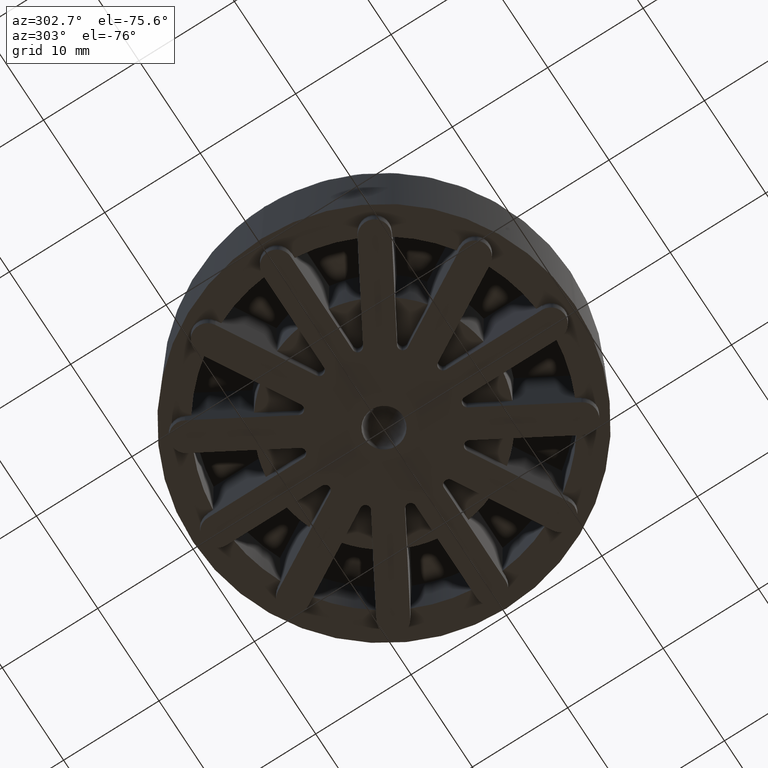
[diagram: clean part render]
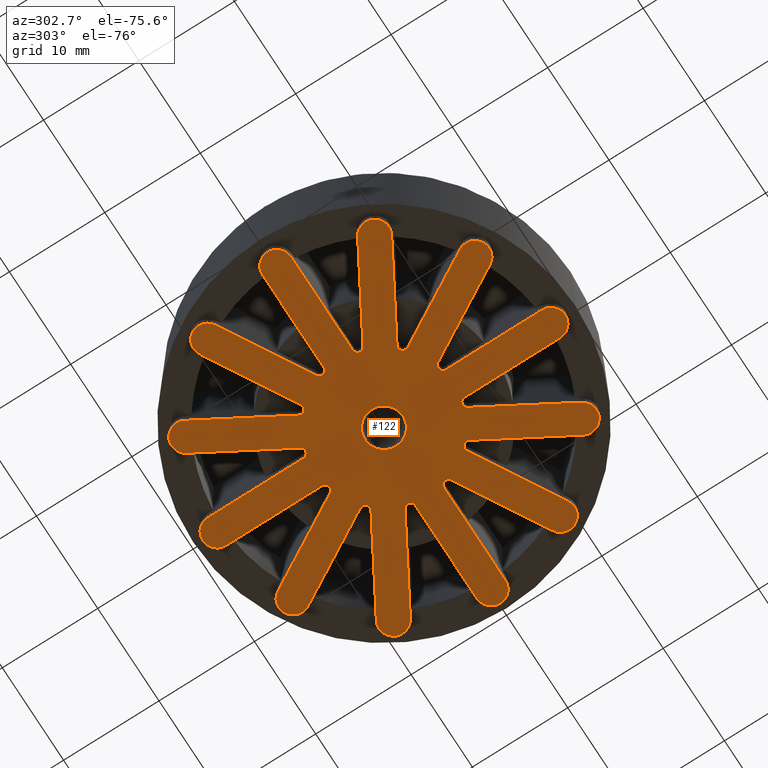
[diagram: same view with one face highlighted and labeled with its STEP entity id]
A machine part, auxiliary view. The second image highlights one B-rep face of the part: STEP entity #122.
In plain terms, the highlighted planar face has unit normal (0, 0, -1).
Its self-contained STEP definition (entity closure, byte-faithful):
#122=ADVANCED_FACE('',(#1024,#1025),#1023,.T.);
#1023=PLANE('',#2232);
#1024=FACE_OUTER_BOUND('',#2233,.T.);
#1025=FACE_BOUND('',#2234,.T.);
#2229=CARTESIAN_POINT('',(2.28000000000E+01,-2.28000000000E+01,0.00000000000E+00));
#2230=DIRECTION('',(0.00000000000E+00,0.00000000000E+00,-1.00000000000E+00));
#2231=DIRECTION('',(-1.00000000000E+00,0.00000000000E+00,0.00000000000E+00));
#2232=AXIS2_PLACEMENT_3D('',#2229,#2230,#2231);
#2233=EDGE_LOOP('',(#3075,#3076,#3077,#3078,#3079,#3080,#3081,#3082,#3083,#3084,#3085,#3086,#3087,#3088,#3089,#3090,#3091,#3092,#3093,#3094,#3095,#3096,#3097,#3098,#3099,#3100,#3101,#3102,#3103,#3104,#3105,#3106,#3107,#3108,#3109,#3110,#3111,#3112,#3113,#3114,#3115,#3116,#3117,#3118,#3119,#3120,#3121,#3122));
#2234=EDGE_LOOP('',(#3123,#3124));
#3075=ORIENTED_EDGE('',*,*,#3839,.F.);
#3076=ORIENTED_EDGE('',*,*,#3840,.F.);
#3077=ORIENTED_EDGE('',*,*,#3791,.T.);
#3078=ORIENTED_EDGE('',*,*,#3841,.F.);
#3079=ORIENTED_EDGE('',*,*,#3793,.F.);
#3080=ORIENTED_EDGE('',*,*,#3603,.F.);
#3081=ORIENTED_EDGE('',*,*,#3795,.T.);
#3082=ORIENTED_EDGE('',*,*,#3842,.F.);
#3083=ORIENTED_EDGE('',*,*,#3797,.F.);
#3084=ORIENTED_EDGE('',*,*,#3611,.F.);
#3085=ORIENTED_EDGE('',*,*,#3799,.T.);
#3086=ORIENTED_EDGE('',*,*,#3623,.F.);
#3087=ORIENTED_EDGE('',*,*,#3801,.F.);
#3088=ORIENTED_EDGE('',*,*,#3843,.F.);
#3089=ORIENTED_EDGE('',*,*,#3803,.T.);
#3090=ORIENTED_EDGE('',*,*,#3760,.F.);
#3091=ORIENTED_EDGE('',*,*,#3805,.F.);
#3092=ORIENTED_EDGE('',*,*,#3763,.F.);
#3093=ORIENTED_EDGE('',*,*,#3807,.T.);
#3094=ORIENTED_EDGE('',*,*,#3844,.F.);
#3095=ORIENTED_EDGE('',*,*,#3809,.F.);
#3096=ORIENTED_EDGE('',*,*,#3769,.F.);
#3097=ORIENTED_EDGE('',*,*,#3811,.T.);
#3098=ORIENTED_EDGE('',*,*,#3778,.F.);
#3099=ORIENTED_EDGE('',*,*,#3813,.F.);
#3100=ORIENTED_EDGE('',*,*,#3845,.F.);
#3101=ORIENTED_EDGE('',*,*,#3815,.T.);
#3102=ORIENTED_EDGE('',*,*,#3846,.F.);
#3103=ORIENTED_EDGE('',*,*,#3817,.F.);
#3104=ORIENTED_EDGE('',*,*,#3847,.F.);
#3105=ORIENTED_EDGE('',*,*,#3819,.T.);
#3106=ORIENTED_EDGE('',*,*,#3848,.F.);
#3107=ORIENTED_EDGE('',*,*,#3821,.F.);
#3108=ORIENTED_EDGE('',*,*,#3849,.F.);
#3109=ORIENTED_EDGE('',*,*,#3823,.T.);
#3110=ORIENTED_EDGE('',*,*,#3850,.F.);
#3111=ORIENTED_EDGE('',*,*,#3825,.F.);
#3112=ORIENTED_EDGE('',*,*,#3851,.F.);
#3113=ORIENTED_EDGE('',*,*,#3827,.T.);
#3114=ORIENTED_EDGE('',*,*,#3852,.F.);
#3115=ORIENTED_EDGE('',*,*,#3829,.F.);
#3116=ORIENTED_EDGE('',*,*,#3853,.F.);
#3117=ORIENTED_EDGE('',*,*,#3831,.T.);
#3118=ORIENTED_EDGE('',*,*,#3854,.F.);
#3119=ORIENTED_EDGE('',*,*,#3834,.F.);
#3120=ORIENTED_EDGE('',*,*,#3591,.F.);
#3121=ORIENTED_EDGE('',*,*,#3837,.T.);
#3122=ORIENTED_EDGE('',*,*,#3855,.F.);
#3123=ORIENTED_EDGE('',*,*,#3856,.F.);
#3124=ORIENTED_EDGE('',*,*,#3857,.F.);
#3591=EDGE_CURVE('',#4017,#4024,#4025,.T.);
#3603=EDGE_CURVE('',#4101,#4108,#4109,.T.);
#3611=EDGE_CURVE('',#4157,#4164,#4165,.T.);
#3623=EDGE_CURVE('',#4241,#4199,#4248,.T.);
#3760=EDGE_CURVE('',#4857,#4899,#5199,.T.);
#3763=EDGE_CURVE('',#4794,#4836,#5219,.T.);
#3769=EDGE_CURVE('',#4710,#4752,#5259,.T.);
#3778=EDGE_CURVE('',#4689,#4731,#5319,.T.);
#3791=EDGE_CURVE('',#5103,#5124,#5405,.T.);
#3793=EDGE_CURVE('',#4108,#5061,#5417,.T.);
#3795=EDGE_CURVE('',#4101,#5027,#5429,.T.);
#3797=EDGE_CURVE('',#4164,#4993,#5441,.T.);
#3799=EDGE_CURVE('',#4157,#4199,#5453,.T.);
#3801=EDGE_CURVE('',#4920,#4241,#5465,.T.);
#3803=EDGE_CURVE('',#4878,#4899,#5477,.T.);
#3805=EDGE_CURVE('',#4836,#4857,#5489,.T.);
#3807=EDGE_CURVE('',#4794,#4815,#5501,.T.);
#3809=EDGE_CURVE('',#4752,#4773,#5513,.T.);
#3811=EDGE_CURVE('',#4710,#4731,#5525,.T.);
#3813=EDGE_CURVE('',#4668,#4689,#5537,.T.);
#3815=EDGE_CURVE('',#4626,#4647,#5549,.T.);
#3817=EDGE_CURVE('',#4584,#4605,#5561,.T.);
#3819=EDGE_CURVE('',#4542,#4563,#5573,.T.);
#3821=EDGE_CURVE('',#4500,#4521,#5585,.T.);
#3823=EDGE_CURVE('',#4458,#4479,#5597,.T.);
#3825=EDGE_CURVE('',#4416,#4437,#5609,.T.);
#3827=EDGE_CURVE('',#4374,#4395,#5621,.T.);
#3829=EDGE_CURVE('',#4332,#4353,#5633,.T.);
#3831=EDGE_CURVE('',#4290,#4311,#5645,.T.);
#3834=EDGE_CURVE('',#4024,#4269,#5664,.T.);
#3837=EDGE_CURVE('',#4017,#5678,#5685,.T.);
#3839=EDGE_CURVE('',#5082,#5145,#5697,.T.);
#3840=EDGE_CURVE('',#5103,#5082,#5703,.T.);
#3841=EDGE_CURVE('',#5061,#5124,#5709,.T.);
#3842=EDGE_CURVE('',#4993,#5027,#5715,.T.);
#3843=EDGE_CURVE('',#4878,#4920,#5721,.T.);
#3844=EDGE_CURVE('',#4773,#4815,#5727,.T.);
#3845=EDGE_CURVE('',#4626,#4668,#5733,.T.);
#3846=EDGE_CURVE('',#4605,#4647,#5739,.T.);
#3847=EDGE_CURVE('',#4542,#4584,#5745,.T.);
#3848=EDGE_CURVE('',#4521,#4563,#5751,.T.);
#3849=EDGE_CURVE('',#4458,#4500,#5757,.T.);
#3850=EDGE_CURVE('',#4437,#4479,#5763,.T.);
#3851=EDGE_CURVE('',#4374,#4416,#5769,.T.);
#3852=EDGE_CURVE('',#4353,#4395,#5775,.T.);
#3853=EDGE_CURVE('',#4290,#4332,#5781,.T.);
#3854=EDGE_CURVE('',#4269,#4311,#5787,.T.);
#3855=EDGE_CURVE('',#5145,#5678,#5793,.T.);
#3856=EDGE_CURVE('',#5799,#5800,#5801,.T.);
#3857=EDGE_CURVE('',#5800,#5799,#5807,.T.);
#4017=VERTEX_POINT('',#6758);
#4024=VERTEX_POINT('',#6762);
#4025=LINE('',#6763,#6764);
#4101=VERTEX_POINT('',#6815);
#4108=VERTEX_POINT('',#6819);
#4109=LINE('',#6820,#6821);
#4157=VERTEX_POINT('',#6852);
#4164=VERTEX_POINT('',#6856);
#4165=LINE('',#6857,#6858);
#4199=VERTEX_POINT('',#6877);
#4241=VERTEX_POINT('',#6903);
#4248=LINE('',#6907,#6908);
#4269=VERTEX_POINT('',#6921);
#4290=VERTEX_POINT('',#6933);
#4311=VERTEX_POINT('',#6945);
#4332=VERTEX_POINT('',#6957);
#4353=VERTEX_POINT('',#6969);
#4374=VERTEX_POINT('',#6981);
#4395=VERTEX_POINT('',#6993);
#4416=VERTEX_POINT('',#7005);
#4437=VERTEX_POINT('',#7017);
#4458=VERTEX_POINT('',#7029);
#4479=VERTEX_POINT('',#7041);
#4500=VERTEX_POINT('',#7053);
#4521=VERTEX_POINT('',#7065);
#4542=VERTEX_POINT('',#7077);
#4563=VERTEX_POINT('',#7089);
#4584=VERTEX_POINT('',#7101);
#4605=VERTEX_POINT('',#7113);
#4626=VERTEX_POINT('',#7125);
#4647=VERTEX_POINT('',#7137);
#4668=VERTEX_POINT('',#7149);
#4689=VERTEX_POINT('',#7161);
#4710=VERTEX_POINT('',#7173);
#4731=VERTEX_POINT('',#7185);
#4752=VERTEX_POINT('',#7197);
#4773=VERTEX_POINT('',#7209);
#4794=VERTEX_POINT('',#7221);
#4815=VERTEX_POINT('',#7233);
#4836=VERTEX_POINT('',#7245);
#4857=VERTEX_POINT('',#7257);
#4878=VERTEX_POINT('',#7269);
#4899=VERTEX_POINT('',#7281);
#4920=VERTEX_POINT('',#7293);
#4993=VERTEX_POINT('',#7333);
#5027=VERTEX_POINT('',#7352);
#5061=VERTEX_POINT('',#7371);
#5082=VERTEX_POINT('',#7383);
#5103=VERTEX_POINT('',#7395);
#5124=VERTEX_POINT('',#7407);
#5145=VERTEX_POINT('',#7419);
#5199=LINE('',#7451,#7452);
#5219=LINE('',#7466,#7467);
#5259=LINE('',#7493,#7494);
#5319=LINE('',#7529,#7530);
#5405=CIRCLE('',#7589,1.50000000000E+00);
#5417=CIRCLE('',#7597,5.00000000000E-01);
#5429=CIRCLE('',#7605,1.50000000000E+00);
#5441=CIRCLE('',#7613,5.00000000000E-01);
#5453=CIRCLE('',#7621,1.50000000000E+00);
#5465=CIRCLE('',#7629,5.00000000000E-01);
#5477=CIRCLE('',#7637,1.50000000000E+00);
#5489=CIRCLE('',#7645,5.00000000000E-01);
#5501=CIRCLE('',#7653,1.50000000000E+00);
#5513=CIRCLE('',#7661,5.00000000000E-01);
#5525=CIRCLE('',#7669,1.50000000000E+00);
#5537=CIRCLE('',#7677,5.00000000000E-01);
#5549=CIRCLE('',#7685,1.50000000000E+00);
#5561=CIRCLE('',#7693,5.00000000000E-01);
#5573=CIRCLE('',#7701,1.50000000000E+00);
#5585=CIRCLE('',#7709,5.00000000000E-01);
#5597=CIRCLE('',#7717,1.50000000000E+00);
#5609=CIRCLE('',#7725,5.00000000000E-01);
#5621=CIRCLE('',#7733,1.50000000000E+00);
#5633=CIRCLE('',#7741,5.00000000000E-01);
#5645=CIRCLE('',#7749,1.50000000000E+00);
#5664=CIRCLE('',#7761,5.00000000000E-01);
#5678=VERTEX_POINT('',#7768);
#5685=CIRCLE('',#7775,1.50000000000E+00);
#5697=CIRCLE('',#7782,5.00000000000E-01);
#5703=LINE('',#7783,#7784);
#5709=LINE('',#7786,#7787);
#5715=LINE('',#7789,#7790);
#5721=LINE('',#7792,#7793);
#5727=LINE('',#7795,#7796);
#5733=LINE('',#7798,#7799);
#5739=LINE('',#7801,#7802);
#5745=LINE('',#7804,#7805);
#5751=LINE('',#7807,#7808);
#5757=LINE('',#7810,#7811);
#5763=LINE('',#7813,#7814);
#5769=LINE('',#7816,#7817);
#5775=LINE('',#7819,#7820);
#5781=LINE('',#7822,#7823);
#5787=LINE('',#7825,#7826);
#5793=LINE('',#7828,#7829);
#5799=VERTEX_POINT('',#7831);
#5800=VERTEX_POINT('',#7832);
#5801=CIRCLE('',#7836,1.99148145657E+00);
#5807=CIRCLE('',#7840,1.99148145657E+00);
#6758=CARTESIAN_POINT('',(1.50000000000E+00,-1.75000000000E+01,0.00000000000E+00));
#6762=CARTESIAN_POINT('',(1.50000000000E+00,-7.46410161514E+00,0.00000000000E+00));
#6763=CARTESIAN_POINT('',(1.50000000000E+00,-1.75000000000E+01,0.00000000000E+00));
#6764=VECTOR('',#6765,1.00358983849E+01);
#6765=DIRECTION('',(0.00000000000E+00,1.00000000000E+00,0.00000000000E+00));
#6815=CARTESIAN_POINT('',(-1.44054445662E+01,-1.00490381057E+01,0.00000000000E+00));
#6819=CARTESIAN_POINT('',(-5.71410161514E+00,-5.03108891325E+00,0.00000000000E+00));
#6820=CARTESIAN_POINT('',(-1.44054445662E+01,-1.00490381057E+01,0.00000000000E+00));
#6821=VECTOR('',#6822,1.00358983849E+01);
#6822=DIRECTION('',(8.66025403784E-01,5.00000000000E-01,0.00000000000E+00));
#6852=CARTESIAN_POINT('',(-1.75000000000E+01,-1.50000000000E+00,0.00000000000E+00));
#6856=CARTESIAN_POINT('',(-7.46410161514E+00,-1.50000000000E+00,0.00000000000E+00));
#6857=CARTESIAN_POINT('',(-1.75000000000E+01,-1.50000000000E+00,0.00000000000E+00));
#6858=VECTOR('',#6859,1.00358983849E+01);
#6859=DIRECTION('',(1.00000000000E+00,2.83200450428E-15,0.00000000000E+00));
#6877=CARTESIAN_POINT('',(-1.75000000000E+01,1.50000000000E+00,0.00000000000E+00));
#6903=CARTESIAN_POINT('',(-7.46410161514E+00,1.50000000000E+00,0.00000000000E+00));
#6907=CARTESIAN_POINT('',(-7.46410161514E+00,1.50000000000E+00,0.00000000000E+00));
#6908=VECTOR('',#6909,1.00358983849E+01);
#6909=DIRECTION('',(-1.00000000000E+00,-1.41600225214E-15,0.00000000000E+00));
#6921=CARTESIAN_POINT('',(2.43301270189E+00,-7.21410161514E+00,0.00000000000E+00));
#6933=CARTESIAN_POINT('',(1.00490381057E+01,-1.44054445662E+01,0.00000000000E+00));
#6945=CARTESIAN_POINT('',(7.45096189432E+00,-1.59054445662E+01,0.00000000000E+00));
#6957=CARTESIAN_POINT('',(5.03108891325E+00,-5.71410161514E+00,0.00000000000E+00));
#6969=CARTESIAN_POINT('',(5.71410161514E+00,-5.03108891325E+00,0.00000000000E+00));
#6981=CARTESIAN_POINT('',(1.59054445662E+01,-7.45096189432E+00,0.00000000000E+00));
#6993=CARTESIAN_POINT('',(1.44054445662E+01,-1.00490381057E+01,0.00000000000E+00));
#7005=CARTESIAN_POINT('',(7.21410161514E+00,-2.43301270189E+00,0.00000000000E+00));
#7017=CARTESIAN_POINT('',(7.46410161514E+00,-1.50000000000E+00,0.00000000000E+00));
#7029=CARTESIAN_POINT('',(1.75000000000E+01,1.50000000000E+00,0.00000000000E+00));
#7041=CARTESIAN_POINT('',(1.75000000000E+01,-1.50000000000E+00,0.00000000000E+00));
#7053=CARTESIAN_POINT('',(7.46410161514E+00,1.50000000000E+00,0.00000000000E+00));
#7065=CARTESIAN_POINT('',(7.21410161514E+00,2.43301270189E+00,0.00000000000E+00));
#7077=CARTESIAN_POINT('',(1.44054445662E+01,1.00490381057E+01,0.00000000000E+00));
#7089=CARTESIAN_POINT('',(1.59054445662E+01,7.45096189432E+00,0.00000000000E+00));
#7101=CARTESIAN_POINT('',(5.71410161514E+00,5.03108891325E+00,0.00000000000E+00));
#7113=CARTESIAN_POINT('',(5.03108891325E+00,5.71410161514E+00,0.00000000000E+00));
#7125=CARTESIAN_POINT('',(7.45096189432E+00,1.59054445662E+01,0.00000000000E+00));
#7137=CARTESIAN_POINT('',(1.00490381057E+01,1.44054445662E+01,0.00000000000E+00));
#7149=CARTESIAN_POINT('',(2.43301270189E+00,7.21410161514E+00,0.00000000000E+00));
#7161=CARTESIAN_POINT('',(1.50000000000E+00,7.46410161514E+00,0.00000000000E+00));
#7173=CARTESIAN_POINT('',(-1.50000000000E+00,1.75000000000E+01,0.00000000000E+00));
#7185=CARTESIAN_POINT('',(1.50000000000E+00,1.75000000000E+01,0.00000000000E+00));
#7197=CARTESIAN_POINT('',(-1.50000000000E+00,7.46410161514E+00,0.00000000000E+00));
#7209=CARTESIAN_POINT('',(-2.43301270189E+00,7.21410161514E+00,0.00000000000E+00));
#7221=CARTESIAN_POINT('',(-1.00490381057E+01,1.44054445662E+01,0.00000000000E+00));
#7233=CARTESIAN_POINT('',(-7.45096189432E+00,1.59054445662E+01,0.00000000000E+00));
#7245=CARTESIAN_POINT('',(-5.03108891325E+00,5.71410161514E+00,0.00000000000E+00));
#7257=CARTESIAN_POINT('',(-5.71410161514E+00,5.03108891325E+00,0.00000000000E+00));
#7269=CARTESIAN_POINT('',(-1.59054445662E+01,7.45096189432E+00,0.00000000000E+00));
#7281=CARTESIAN_POINT('',(-1.44054445662E+01,1.00490381057E+01,0.00000000000E+00));
#7293=CARTESIAN_POINT('',(-7.21410161514E+00,2.43301270189E+00,0.00000000000E+00));
#7333=CARTESIAN_POINT('',(-7.21410161514E+00,-2.43301270189E+00,0.00000000000E+00));
#7352=CARTESIAN_POINT('',(-1.59054445662E+01,-7.45096189432E+00,0.00000000000E+00));
#7371=CARTESIAN_POINT('',(-5.03108891325E+00,-5.71410161514E+00,0.00000000000E+00));
#7383=CARTESIAN_POINT('',(-2.43301270189E+00,-7.21410161514E+00,0.00000000000E+00));
#7395=CARTESIAN_POINT('',(-7.45096189432E+00,-1.59054445662E+01,0.00000000000E+00));
#7407=CARTESIAN_POINT('',(-1.00490381057E+01,-1.44054445662E+01,0.00000000000E+00));
#7419=CARTESIAN_POINT('',(-1.50000000000E+00,-7.46410161514E+00,0.00000000000E+00));
#7451=CARTESIAN_POINT('',(-5.71410161514E+00,5.03108891325E+00,0.00000000000E+00));
#7452=VECTOR('',#7453,1.00358983849E+01);
#7453=DIRECTION('',(-8.66025403784E-01,5.00000000000E-01,0.00000000000E+00));
#7466=CARTESIAN_POINT('',(-1.00490381057E+01,1.44054445662E+01,0.00000000000E+00));
#7467=VECTOR('',#7468,1.00358983849E+01);
#7468=DIRECTION('',(5.00000000000E-01,-8.66025403784E-01,0.00000000000E+00));
#7493=CARTESIAN_POINT('',(-1.50000000000E+00,1.75000000000E+01,0.00000000000E+00));
#7494=VECTOR('',#7495,1.00358983849E+01);
#7495=DIRECTION('',(0.00000000000E+00,-1.00000000000E+00,0.00000000000E+00));
#7529=CARTESIAN_POINT('',(1.50000000000E+00,7.46410161514E+00,0.00000000000E+00));
#7530=VECTOR('',#7531,1.00358983849E+01);
#7531=DIRECTION('',(0.00000000000E+00,1.00000000000E+00,0.00000000000E+00));
#7586=CARTESIAN_POINT('',(-8.75000000000E+00,-1.51554445662E+01,0.00000000000E+00));
#7587=DIRECTION('',(0.00000000000E+00,0.00000000000E+00,-1.00000000000E+00));
#7588=DIRECTION('',(1.00000000000E+00,-0.00000000000E+00,-0.00000000000E+00));
#7589=AXIS2_PLACEMENT_3D('',#7586,#7587,#7588);
#7594=CARTESIAN_POINT('',(-5.46410161514E+00,-5.46410161514E+00,0.00000000000E+00));
#7595=DIRECTION('',(0.00000000000E+00,0.00000000000E+00,-1.00000000000E+00));
#7596=DIRECTION('',(-5.00000000000E-01,8.66025403784E-01,0.00000000000E+00));
#7597=AXIS2_PLACEMENT_3D('',#7594,#7595,#7596);
#7602=CARTESIAN_POINT('',(-1.51554445662E+01,-8.75000000000E+00,0.00000000000E+00));
#7603=DIRECTION('',(0.00000000000E+00,0.00000000000E+00,-1.00000000000E+00));
#7604=DIRECTION('',(1.00000000000E+00,-0.00000000000E+00,-0.00000000000E+00));
#7605=AXIS2_PLACEMENT_3D('',#7602,#7603,#7604);
#7610=CARTESIAN_POINT('',(-7.46410161514E+00,-2.00000000000E+00,0.00000000000E+00));
#7611=DIRECTION('',(0.00000000000E+00,0.00000000000E+00,-1.00000000000E+00));
#7612=DIRECTION('',(-1.83690953073E-16,1.00000000000E+00,0.00000000000E+00));
#7613=AXIS2_PLACEMENT_3D('',#7610,#7611,#7612);
#7618=CARTESIAN_POINT('',(-1.75000000000E+01,-1.13686837722E-13,0.00000000000E+00));
#7619=DIRECTION('',(0.00000000000E+00,0.00000000000E+00,-1.00000000000E+00));
#7620=DIRECTION('',(1.00000000000E+00,-0.00000000000E+00,-0.00000000000E+00));
#7621=AXIS2_PLACEMENT_3D('',#7618,#7619,#7620);
#7626=CARTESIAN_POINT('',(-7.46410161514E+00,2.00000000000E+00,0.00000000000E+00));
#7627=DIRECTION('',(0.00000000000E+00,0.00000000000E+00,-1.00000000000E+00));
#7628=DIRECTION('',(5.00000000000E-01,8.66025403784E-01,0.00000000000E+00));
#7629=AXIS2_PLACEMENT_3D('',#7626,#7627,#7628);
#7634=CARTESIAN_POINT('',(-1.51554445662E+01,8.75000000000E+00,0.00000000000E+00));
#7635=DIRECTION('',(0.00000000000E+00,0.00000000000E+00,-1.00000000000E+00));
#7636=DIRECTION('',(1.00000000000E+00,-0.00000000000E+00,-0.00000000000E+00));
#7637=AXIS2_PLACEMENT_3D('',#7634,#7635,#7636);
#7642=CARTESIAN_POINT('',(-5.46410161514E+00,5.46410161514E+00,0.00000000000E+00));
#7643=DIRECTION('',(0.00000000000E+00,0.00000000000E+00,-1.00000000000E+00));
#7644=DIRECTION('',(8.66025403784E-01,5.00000000000E-01,0.00000000000E+00));
#7645=AXIS2_PLACEMENT_3D('',#7642,#7643,#7644);
#7650=CARTESIAN_POINT('',(-8.75000000000E+00,1.51554445662E+01,0.00000000000E+00));
#7651=DIRECTION('',(0.00000000000E+00,0.00000000000E+00,-1.00000000000E+00));
#7652=DIRECTION('',(1.00000000000E+00,-0.00000000000E+00,-0.00000000000E+00));
#7653=AXIS2_PLACEMENT_3D('',#7650,#7651,#7652);
#7658=CARTESIAN_POINT('',(-2.00000000000E+00,7.46410161514E+00,0.00000000000E+00));
#7659=DIRECTION('',(0.00000000000E+00,0.00000000000E+00,-1.00000000000E+00));
#7660=DIRECTION('',(1.00000000000E+00,-0.00000000000E+00,-0.00000000000E+00));
#7661=AXIS2_PLACEMENT_3D('',#7658,#7659,#7660);
#7666=CARTESIAN_POINT('',(0.00000000000E+00,1.75000000000E+01,0.00000000000E+00));
#7667=DIRECTION('',(0.00000000000E+00,0.00000000000E+00,-1.00000000000E+00));
#7668=DIRECTION('',(1.00000000000E+00,-0.00000000000E+00,-0.00000000000E+00));
#7669=AXIS2_PLACEMENT_3D('',#7666,#7667,#7668);
#7674=CARTESIAN_POINT('',(2.00000000000E+00,7.46410161514E+00,0.00000000000E+00));
#7675=DIRECTION('',(0.00000000000E+00,0.00000000000E+00,-1.00000000000E+00));
#7676=DIRECTION('',(1.00000000000E+00,-0.00000000000E+00,-0.00000000000E+00));
#7677=AXIS2_PLACEMENT_3D('',#7674,#7675,#7676);
#7682=CARTESIAN_POINT('',(8.75000000000E+00,1.51554445662E+01,0.00000000000E+00));
#7683=DIRECTION('',(0.00000000000E+00,0.00000000000E+00,-1.00000000000E+00));
#7684=DIRECTION('',(-8.66025403784E-01,5.00000000000E-01,0.00000000000E+00));
#7685=AXIS2_PLACEMENT_3D('',#7682,#7683,#7684);
#7690=CARTESIAN_POINT('',(5.46410161514E+00,5.46410161514E+00,0.00000000000E+00));
#7691=DIRECTION('',(0.00000000000E+00,0.00000000000E+00,-1.00000000000E+00));
#7692=DIRECTION('',(1.00000000000E+00,-0.00000000000E+00,-0.00000000000E+00));
#7693=AXIS2_PLACEMENT_3D('',#7690,#7691,#7692);
#7698=CARTESIAN_POINT('',(1.51554445662E+01,8.75000000000E+00,0.00000000000E+00));
#7699=DIRECTION('',(0.00000000000E+00,0.00000000000E+00,-1.00000000000E+00));
#7700=DIRECTION('',(-5.00000000000E-01,8.66025403784E-01,0.00000000000E+00));
#7701=AXIS2_PLACEMENT_3D('',#7698,#7699,#7700);
#7706=CARTESIAN_POINT('',(7.46410161514E+00,2.00000000000E+00,0.00000000000E+00));
#7707=DIRECTION('',(0.00000000000E+00,0.00000000000E+00,-1.00000000000E+00));
#7708=DIRECTION('',(1.00000000000E+00,-0.00000000000E+00,-0.00000000000E+00));
#7709=AXIS2_PLACEMENT_3D('',#7706,#7707,#7708);
#7714=CARTESIAN_POINT('',(1.75000000000E+01,-5.68434188608E-14,0.00000000000E+00));
#7715=DIRECTION('',(0.00000000000E+00,0.00000000000E+00,-1.00000000000E+00));
#7716=DIRECTION('',(-1.83690953073E-16,1.00000000000E+00,0.00000000000E+00));
#7717=AXIS2_PLACEMENT_3D('',#7714,#7715,#7716);
#7722=CARTESIAN_POINT('',(7.46410161514E+00,-2.00000000000E+00,0.00000000000E+00));
#7723=DIRECTION('',(0.00000000000E+00,0.00000000000E+00,-1.00000000000E+00));
#7724=DIRECTION('',(1.00000000000E+00,-0.00000000000E+00,-0.00000000000E+00));
#7725=AXIS2_PLACEMENT_3D('',#7722,#7723,#7724);
#7730=CARTESIAN_POINT('',(1.51554445662E+01,-8.75000000000E+00,0.00000000000E+00));
#7731=DIRECTION('',(0.00000000000E+00,0.00000000000E+00,-1.00000000000E+00));
#7732=DIRECTION('',(5.00000000000E-01,8.66025403784E-01,0.00000000000E+00));
#7733=AXIS2_PLACEMENT_3D('',#7730,#7731,#7732);
#7738=CARTESIAN_POINT('',(5.46410161514E+00,-5.46410161514E+00,0.00000000000E+00));
#7739=DIRECTION('',(0.00000000000E+00,0.00000000000E+00,-1.00000000000E+00));
#7740=DIRECTION('',(1.00000000000E+00,-0.00000000000E+00,-0.00000000000E+00));
#7741=AXIS2_PLACEMENT_3D('',#7738,#7739,#7740);
#7746=CARTESIAN_POINT('',(8.75000000000E+00,-1.51554445662E+01,0.00000000000E+00));
#7747=DIRECTION('',(0.00000000000E+00,0.00000000000E+00,-1.00000000000E+00));
#7748=DIRECTION('',(8.66025403784E-01,5.00000000000E-01,0.00000000000E+00));
#7749=AXIS2_PLACEMENT_3D('',#7746,#7747,#7748);
#7758=CARTESIAN_POINT('',(2.00000000000E+00,-7.46410161514E+00,0.00000000000E+00));
#7759=DIRECTION('',(0.00000000000E+00,0.00000000000E+00,-1.00000000000E+00));
#7760=DIRECTION('',(1.00000000000E+00,-0.00000000000E+00,-0.00000000000E+00));
#7761=AXIS2_PLACEMENT_3D('',#7758,#7759,#7760);
#7768=CARTESIAN_POINT('',(-1.50000000000E+00,-1.75000000000E+01,0.00000000000E+00));
#7772=CARTESIAN_POINT('',(0.00000000000E+00,-1.75000000000E+01,0.00000000000E+00));
#7773=DIRECTION('',(0.00000000000E+00,0.00000000000E+00,-1.00000000000E+00));
#7774=DIRECTION('',(1.00000000000E+00,-0.00000000000E+00,-0.00000000000E+00));
#7775=AXIS2_PLACEMENT_3D('',#7772,#7773,#7774);
#7779=CARTESIAN_POINT('',(-2.00000000000E+00,-7.46410161514E+00,0.00000000000E+00));
#7780=DIRECTION('',(0.00000000000E+00,0.00000000000E+00,-1.00000000000E+00));
#7781=DIRECTION('',(1.00000000000E+00,-0.00000000000E+00,-0.00000000000E+00));
#7782=AXIS2_PLACEMENT_3D('',#7779,#7780,#7781);
#7783=CARTESIAN_POINT('',(-7.45096189432E+00,-1.59054445662E+01,0.00000000000E+00));
#7784=VECTOR('',#7785,1.00358983849E+01);
#7785=DIRECTION('',(5.00000000000E-01,8.66025403784E-01,0.00000000000E+00));
#7786=CARTESIAN_POINT('',(-5.03108891325E+00,-5.71410161514E+00,0.00000000000E+00));
#7787=VECTOR('',#7788,1.00358983849E+01);
#7788=DIRECTION('',(-5.00000000000E-01,-8.66025403784E-01,0.00000000000E+00));
#7789=CARTESIAN_POINT('',(-7.21410161514E+00,-2.43301270189E+00,0.00000000000E+00));
#7790=VECTOR('',#7791,1.00358983849E+01);
#7791=DIRECTION('',(-8.66025403784E-01,-5.00000000000E-01,0.00000000000E+00));
#7792=CARTESIAN_POINT('',(-1.59054445662E+01,7.45096189432E+00,0.00000000000E+00));
#7793=VECTOR('',#7794,1.00358983849E+01);
#7794=DIRECTION('',(8.66025403784E-01,-5.00000000000E-01,0.00000000000E+00));
#7795=CARTESIAN_POINT('',(-2.43301270189E+00,7.21410161514E+00,0.00000000000E+00));
#7796=VECTOR('',#7797,1.00358983849E+01);
#7797=DIRECTION('',(-5.00000000000E-01,8.66025403784E-01,0.00000000000E+00));
#7798=CARTESIAN_POINT('',(7.45096189432E+00,1.59054445662E+01,0.00000000000E+00));
#7799=VECTOR('',#7800,1.00358983849E+01);
#7800=DIRECTION('',(-5.00000000000E-01,-8.66025403784E-01,0.00000000000E+00));
#7801=CARTESIAN_POINT('',(5.03108891325E+00,5.71410161514E+00,0.00000000000E+00));
#7802=VECTOR('',#7803,1.00358983849E+01);
#7803=DIRECTION('',(5.00000000000E-01,8.66025403784E-01,0.00000000000E+00));
#7804=CARTESIAN_POINT('',(1.44054445662E+01,1.00490381057E+01,0.00000000000E+00));
#7805=VECTOR('',#7806,1.00358983849E+01);
#7806=DIRECTION('',(-8.66025403784E-01,-5.00000000000E-01,0.00000000000E+00));
#7807=CARTESIAN_POINT('',(7.21410161514E+00,2.43301270189E+00,0.00000000000E+00));
#7808=VECTOR('',#7809,1.00358983849E+01);
#7809=DIRECTION('',(8.66025403784E-01,5.00000000000E-01,0.00000000000E+00));
#7810=CARTESIAN_POINT('',(1.75000000000E+01,1.50000000000E+00,0.00000000000E+00));
#7811=VECTOR('',#7812,1.00358983849E+01);
#7812=DIRECTION('',(-1.00000000000E+00,-2.83200450428E-15,0.00000000000E+00));
#7813=CARTESIAN_POINT('',(7.46410161514E+00,-1.50000000000E+00,0.00000000000E+00));
#7814=VECTOR('',#7815,1.00358983849E+01);
#7815=DIRECTION('',(1.00000000000E+00,1.41600225214E-15,0.00000000000E+00));
#7816=CARTESIAN_POINT('',(1.59054445662E+01,-7.45096189432E+00,0.00000000000E+00));
#7817=VECTOR('',#7818,1.00358983849E+01);
#7818=DIRECTION('',(-8.66025403784E-01,5.00000000000E-01,0.00000000000E+00));
#7819=CARTESIAN_POINT('',(5.71410161514E+00,-5.03108891325E+00,0.00000000000E+00));
#7820=VECTOR('',#7821,1.00358983849E+01);
#7821=DIRECTION('',(8.66025403784E-01,-5.00000000000E-01,0.00000000000E+00));
#7822=CARTESIAN_POINT('',(1.00490381057E+01,-1.44054445662E+01,0.00000000000E+00));
#7823=VECTOR('',#7824,1.00358983849E+01);
#7824=DIRECTION('',(-5.00000000000E-01,8.66025403784E-01,0.00000000000E+00));
#7825=CARTESIAN_POINT('',(2.43301270189E+00,-7.21410161514E+00,0.00000000000E+00));
#7826=VECTOR('',#7827,1.00358983849E+01);
#7827=DIRECTION('',(5.00000000000E-01,-8.66025403784E-01,0.00000000000E+00));
#7828=CARTESIAN_POINT('',(-1.50000000000E+00,-7.46410161514E+00,0.00000000000E+00));
#7829=VECTOR('',#7830,1.00358983849E+01);
#7830=DIRECTION('',(0.00000000000E+00,-1.00000000000E+00,0.00000000000E+00));
#7831=CARTESIAN_POINT('',(1.99148145657E+00,2.22044604925E-16,0.00000000000E+00));
#7832=CARTESIAN_POINT('',(-1.99148145657E+00,0.00000000000E+00,0.00000000000E+00));
#7833=CARTESIAN_POINT('',(0.00000000000E+00,0.00000000000E+00,0.00000000000E+00));
#7834=DIRECTION('',(-0.00000000000E+00,0.00000000000E+00,-1.00000000000E+00));
#7835=DIRECTION('',(-1.00000000000E+00,-1.22460635382E-16,0.00000000000E+00));
#7836=AXIS2_PLACEMENT_3D('',#7833,#7834,#7835);
#7837=CARTESIAN_POINT('',(0.00000000000E+00,0.00000000000E+00,0.00000000000E+00));
#7838=DIRECTION('',(-0.00000000000E+00,0.00000000000E+00,-1.00000000000E+00));
#7839=DIRECTION('',(-1.00000000000E+00,-1.22460635382E-16,0.00000000000E+00));
#7840=AXIS2_PLACEMENT_3D('',#7837,#7838,#7839);